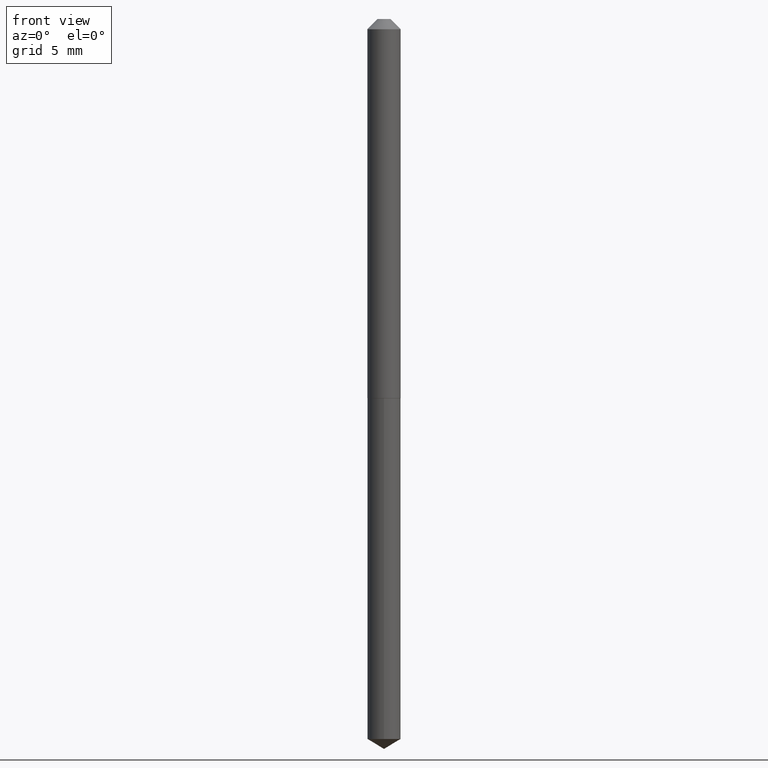
[diagram: clean part render]
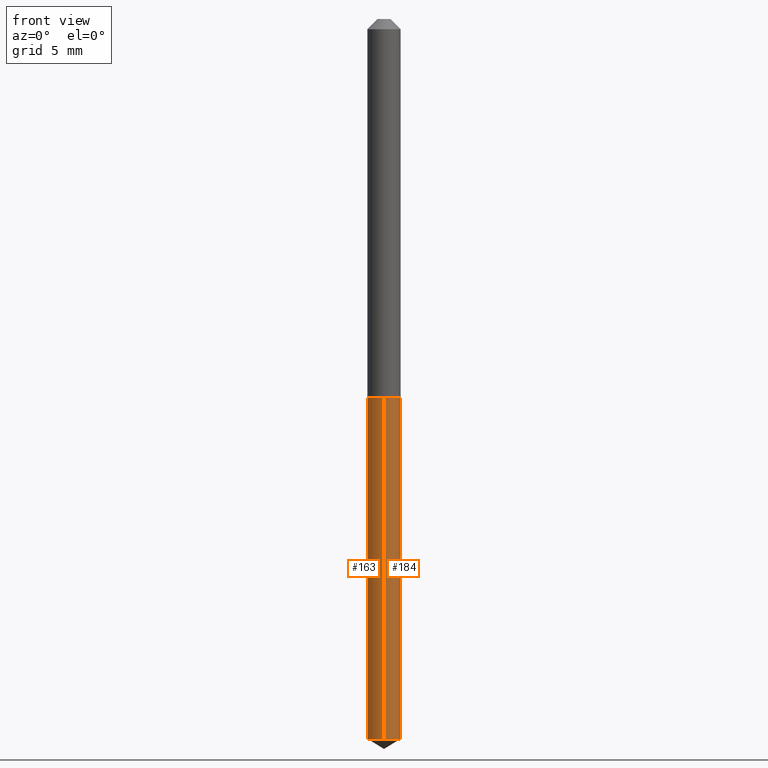
[diagram: same view with one multi-face feature highlighted, each face labeled with its STEP entity id]
A machine part, front view. The highlighted faces form ONE feature: a constant-radius fillet chain: 2 tangent blend faces with common blend radius 1.3005 mm. The faces share edges in the B-rep.
Their STEP definitions:
[1] entity #184 (Cylinder):
#18 = EDGE_LOOP ( 'NONE', ( #59, #40, #236, #166 ) ) ;
#31 = DIRECTION ( 'NONE',  ( -2.445490314477977203E-29, 3.491450537743621810E-15, 1.000000000000000000 ) ) ;
#40 = ORIENTED_EDGE ( 'NONE', *, *, #53, .T. ) ;
#53 = EDGE_CURVE ( 'NONE', #342, #192, #146, .T. ) ;
#56 = AXIS2_PLACEMENT_3D ( 'NONE', #293, #118, #212 ) ;
#59 = ORIENTED_EDGE ( 'NONE', *, *, #114, .T. ) ;
#64 = EDGE_CURVE ( 'NONE', #375, #192, #230, .T. ) ;
#66 = CARTESIAN_POINT ( 'NONE',  ( 5.412666529157376406E-29, -7.727788840623516747E-15, -2.213335936305789176 ) ) ;
#67 = AXIS2_PLACEMENT_3D ( 'NONE', #219, #244, #185 ) ;
#68 = EDGE_CURVE ( 'NONE', #384, #375, #177, .T. ) ;
#90 = CARTESIAN_POINT ( 'NONE',  ( 3.637978807092255468E-16, 0.05119999999999593626, -1.165399999999999991 ) ) ;
#113 = DIRECTION ( 'NONE',  ( -2.445490314477977203E-29, 3.491450537743622204E-15, 1.000000000000000000 ) ) ;
#114 = EDGE_CURVE ( 'NONE', #384, #342, #205, .T. ) ;
#118 = DIRECTION ( 'NONE',  ( -2.445490314477977203E-29, 3.491450537743621810E-15, 1.000000000000000000 ) ) ;
#120 = DIRECTION ( 'NONE',  ( -2.445490314477977203E-29, 3.491450537743622204E-15, 1.000000000000000000 ) ) ;
#146 = LINE ( 'NONE', #383, #149 ) ;
#149 = VECTOR ( 'NONE', #113, 39.37007874015748143 ) ;
#166 = ORIENTED_EDGE ( 'NONE', *, *, #68, .F. ) ;
#177 = LINE ( 'NONE', #294, #197 ) ;
#184 = ADVANCED_FACE ( 'NONE', ( #304 ), #303, .T. ) ;
#185 = DIRECTION ( 'NONE',  ( -6.982962677686265133E-15, -1.000000000000000000, 2.667820306312756424E-15 ) ) ;
#192 = VERTEX_POINT ( 'NONE', #90 ) ;
#197 = VECTOR ( 'NONE', #120, 39.37007874015748143 ) ;
#205 = CIRCLE ( 'NONE', #332, 0.05120000000000000939 ) ;
#212 = DIRECTION ( 'NONE',  ( -6.982962677686265133E-15, -1.000000000000000000, 2.667820306312756424E-15 ) ) ;
#219 = CARTESIAN_POINT ( 'NONE',  ( 2.849949346728157749E-29, -4.068972352287801446E-15, -1.165399999999999991 ) ) ;
#230 = CIRCLE ( 'NONE', #56, 0.05120000000000000939 ) ;
#236 = ORIENTED_EDGE ( 'NONE', *, *, #64, .F. ) ;
#244 = DIRECTION ( 'NONE',  ( -2.445490314477977203E-29, 3.491450537743621810E-15, 1.000000000000000000 ) ) ;
#256 = CARTESIAN_POINT ( 'NONE',  ( 3.637978807092252510E-16, 0.05119999999999226559, -2.213335936305789620 ) ) ;
#293 = CARTESIAN_POINT ( 'NONE',  ( 2.849949346728157749E-29, -4.068972352287801446E-15, -1.165399999999999991 ) ) ;
#294 = CARTESIAN_POINT ( 'NONE',  ( -3.575276890975083509E-16, -0.05120000000000407558, -1.165399999999999769 ) ) ;
#303 = CYLINDRICAL_SURFACE ( 'NONE', #67, 0.05120000000000000939 ) ;
#304 = FACE_OUTER_BOUND ( 'NONE', #18, .T. ) ;
#332 = AXIS2_PLACEMENT_3D ( 'NONE', #66, #31, #388 ) ;
#342 = VERTEX_POINT ( 'NONE', #256 ) ;
#367 = CARTESIAN_POINT ( 'NONE',  ( -3.575276890974827129E-16, -0.05120000000000772544, -2.213335936305789176 ) ) ;
#370 = CARTESIAN_POINT ( 'NONE',  ( -3.575276890975083509E-16, -0.05120000000000407558, -1.165399999999999769 ) ) ;
#375 = VERTEX_POINT ( 'NONE', #370 ) ;
#383 = CARTESIAN_POINT ( 'NONE',  ( 3.637978807091998102E-16, 0.05119999999999593626, -1.165399999999999991 ) ) ;
#384 = VERTEX_POINT ( 'NONE', #367 ) ;
#388 = DIRECTION ( 'NONE',  ( -6.982962677686265133E-15, -1.000000000000000000, 5.335640612625512847E-15 ) ) ;
[2] entity #163 (Cylinder):
#16 = EDGE_LOOP ( 'NONE', ( #261, #36, #164, #373 ) ) ;
#27 = CARTESIAN_POINT ( 'NONE',  ( 5.412666529157376406E-29, -7.727788840623516747E-15, -2.213335936305789176 ) ) ;
#36 = ORIENTED_EDGE ( 'NONE', *, *, #259, .T. ) ;
#43 = EDGE_CURVE ( 'NONE', #192, #375, #288, .T. ) ;
#53 = EDGE_CURVE ( 'NONE', #342, #192, #146, .T. ) ;
#65 = FACE_OUTER_BOUND ( 'NONE', #16, .T. ) ;
#68 = EDGE_CURVE ( 'NONE', #384, #375, #177, .T. ) ;
#90 = CARTESIAN_POINT ( 'NONE',  ( 3.637978807092255468E-16, 0.05119999999999593626, -1.165399999999999991 ) ) ;
#94 = DIRECTION ( 'NONE',  ( -2.445490314477977203E-29, 3.491450537743621810E-15, 1.000000000000000000 ) ) ;
#113 = DIRECTION ( 'NONE',  ( -2.445490314477977203E-29, 3.491450537743622204E-15, 1.000000000000000000 ) ) ;
#120 = DIRECTION ( 'NONE',  ( -2.445490314477977203E-29, 3.491450537743622204E-15, 1.000000000000000000 ) ) ;
#126 = DIRECTION ( 'NONE',  ( -2.445490314477977203E-29, 3.491450537743621810E-15, 1.000000000000000000 ) ) ;
#146 = LINE ( 'NONE', #383, #149 ) ;
#149 = VECTOR ( 'NONE', #113, 39.37007874015748143 ) ;
#155 = CARTESIAN_POINT ( 'NONE',  ( 2.849949346728157749E-29, -4.068972352287801446E-15, -1.165399999999999991 ) ) ;
#163 = ADVANCED_FACE ( 'NONE', ( #65 ), #272, .T. ) ;
#164 = ORIENTED_EDGE ( 'NONE', *, *, #68, .T. ) ;
#177 = LINE ( 'NONE', #294, #197 ) ;
#186 = DIRECTION ( 'NONE',  ( -6.982962677686265133E-15, -1.000000000000000000, 2.667820306312756424E-15 ) ) ;
#192 = VERTEX_POINT ( 'NONE', #90 ) ;
#197 = VECTOR ( 'NONE', #120, 39.37007874015748143 ) ;
#204 = DIRECTION ( 'NONE',  ( -2.445490314477977203E-29, 3.491450537743621810E-15, 1.000000000000000000 ) ) ;
#218 = AXIS2_PLACEMENT_3D ( 'NONE', #155, #94, #186 ) ;
#221 = DIRECTION ( 'NONE',  ( -6.982962677686265133E-15, -1.000000000000000000, 5.335640612625512847E-15 ) ) ;
#256 = CARTESIAN_POINT ( 'NONE',  ( 3.637978807092252510E-16, 0.05119999999999226559, -2.213335936305789620 ) ) ;
#259 = EDGE_CURVE ( 'NONE', #342, #384, #353, .T. ) ;
#261 = ORIENTED_EDGE ( 'NONE', *, *, #53, .F. ) ;
#269 = CARTESIAN_POINT ( 'NONE',  ( 2.849949346728157749E-29, -4.068972352287801446E-15, -1.165399999999999991 ) ) ;
#272 = CYLINDRICAL_SURFACE ( 'NONE', #218, 0.05120000000000000939 ) ;
#288 = CIRCLE ( 'NONE', #378, 0.05120000000000000939 ) ;
#292 = DIRECTION ( 'NONE',  ( -6.982962677686265133E-15, -1.000000000000000000, 2.667820306312756424E-15 ) ) ;
#294 = CARTESIAN_POINT ( 'NONE',  ( -3.575276890975083509E-16, -0.05120000000000407558, -1.165399999999999769 ) ) ;
#300 = AXIS2_PLACEMENT_3D ( 'NONE', #27, #126, #221 ) ;
#342 = VERTEX_POINT ( 'NONE', #256 ) ;
#353 = CIRCLE ( 'NONE', #300, 0.05120000000000000939 ) ;
#367 = CARTESIAN_POINT ( 'NONE',  ( -3.575276890974827129E-16, -0.05120000000000772544, -2.213335936305789176 ) ) ;
#370 = CARTESIAN_POINT ( 'NONE',  ( -3.575276890975083509E-16, -0.05120000000000407558, -1.165399999999999769 ) ) ;
#373 = ORIENTED_EDGE ( 'NONE', *, *, #43, .F. ) ;
#375 = VERTEX_POINT ( 'NONE', #370 ) ;
#378 = AXIS2_PLACEMENT_3D ( 'NONE', #269, #204, #292 ) ;
#383 = CARTESIAN_POINT ( 'NONE',  ( 3.637978807091998102E-16, 0.05119999999999593626, -1.165399999999999991 ) ) ;
#384 = VERTEX_POINT ( 'NONE', #367 ) ;